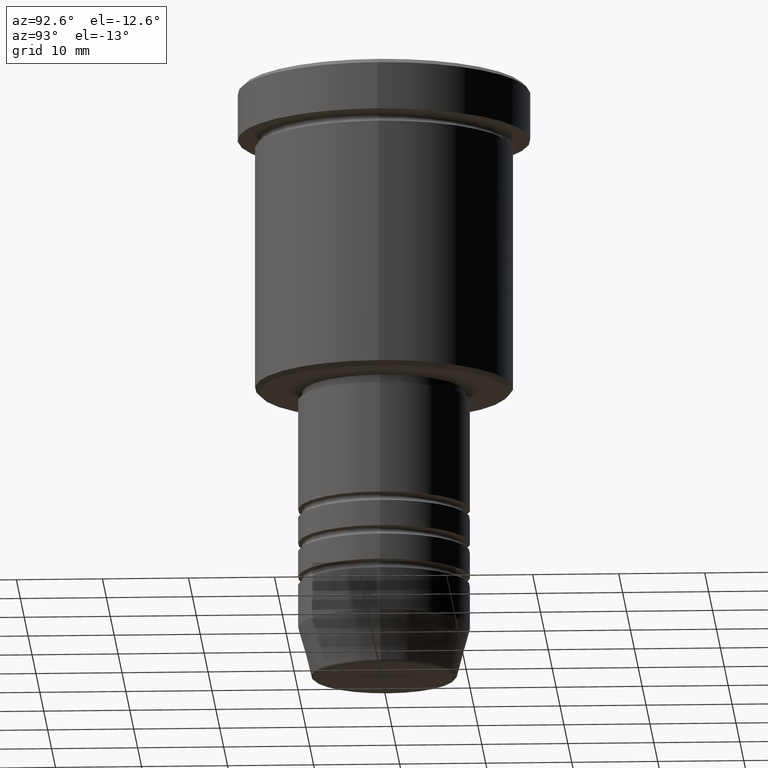
[diagram: clean part render]
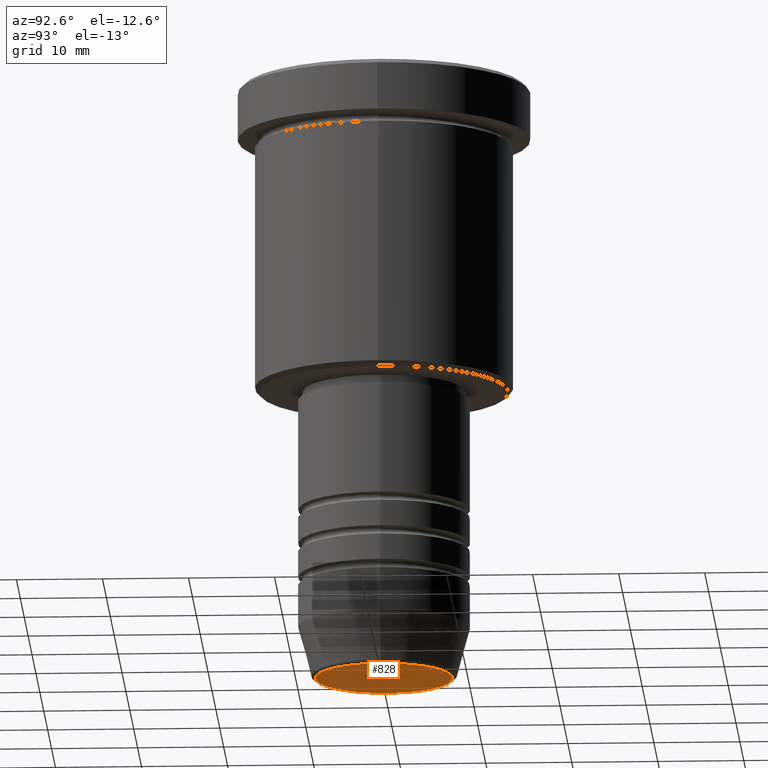
[diagram: same view with one face highlighted and labeled with its STEP entity id]
A machine part, auxiliary view. The second image highlights one B-rep face of the part: STEP entity #828.
In plain terms, the highlighted planar face has unit normal (0, -0, 1).
Its self-contained STEP definition (entity closure, byte-faithful):
#64 = CARTESIAN_POINT ( 'NONE',  ( 0.000000000000000000, 0.000000000000000000, -70.00000000000000000 ) ) ;
#108 = AXIS2_PLACEMENT_3D ( 'NONE', #1142, #801, #325 ) ;
#118 = FACE_OUTER_BOUND ( 'NONE', #702, .T. ) ;
#169 = ORIENTED_EDGE ( 'NONE', *, *, #1143, .T. ) ;
#176 = ORIENTED_EDGE ( 'NONE', *, *, #684, .T. ) ;
#325 = DIRECTION ( 'NONE',  ( 1.000000000000000000, 0.000000000000000000, 0.000000000000000000 ) ) ;
#326 = CIRCLE ( 'NONE', #108, 8.008641351423779753 ) ;
#364 = AXIS2_PLACEMENT_3D ( 'NONE', #1034, #1114, #387 ) ;
#375 = CIRCLE ( 'NONE', #537, 8.008641351423779753 ) ;
#387 = DIRECTION ( 'NONE',  ( 1.000000000000000000, 0.000000000000000000, 0.000000000000000000 ) ) ;
#426 = DIRECTION ( 'NONE',  ( 1.000000000000000000, 0.000000000000000000, 0.000000000000000000 ) ) ;
#434 = VERTEX_POINT ( 'NONE', #1102 ) ;
#530 = DIRECTION ( 'NONE',  ( 0.000000000000000000, 0.000000000000000000, -1.000000000000000000 ) ) ;
#537 = AXIS2_PLACEMENT_3D ( 'NONE', #64, #530, #426 ) ;
#683 = CARTESIAN_POINT ( 'NONE',  ( 8.008641351423779753, 0.000000000000000000, -70.00000000000000000 ) ) ;
#684 = EDGE_CURVE ( 'NONE', #434, #1092, #375, .T. ) ;
#702 = EDGE_LOOP ( 'NONE', ( #169, #176 ) ) ;
#801 = DIRECTION ( 'NONE',  ( 0.000000000000000000, 0.000000000000000000, -1.000000000000000000 ) ) ;
#828 = ADVANCED_FACE ( 'NONE', ( #118 ), #931, .F. ) ;
#931 = PLANE ( 'NONE',  #364 ) ;
#1034 = CARTESIAN_POINT ( 'NONE',  ( 0.000000000000000000, 0.000000000000000000, -70.00000000000000000 ) ) ;
#1092 = VERTEX_POINT ( 'NONE', #683 ) ;
#1102 = CARTESIAN_POINT ( 'NONE',  ( -8.008641351423779753, 1.010348648938493172E-15, -70.00000000000000000 ) ) ;
#1114 = DIRECTION ( 'NONE',  ( 0.000000000000000000, -0.000000000000000000, 1.000000000000000000 ) ) ;
#1142 = CARTESIAN_POINT ( 'NONE',  ( 0.000000000000000000, 0.000000000000000000, -70.00000000000000000 ) ) ;
#1143 = EDGE_CURVE ( 'NONE', #1092, #434, #326, .T. ) ;